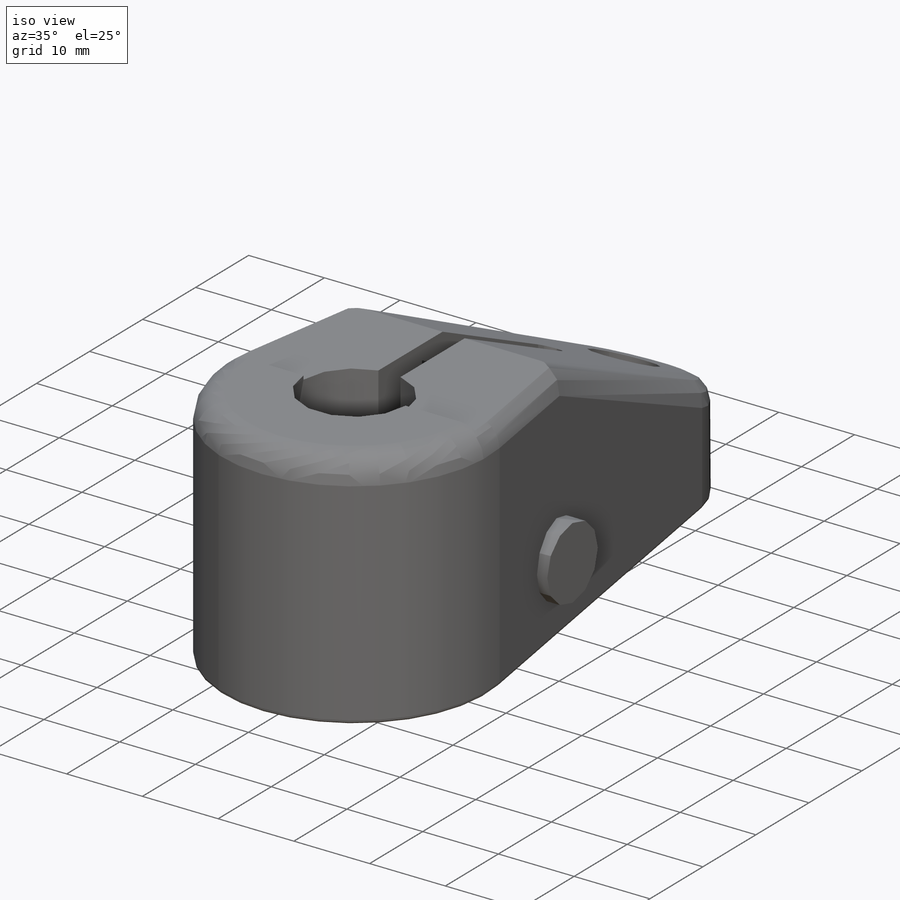
[diagram: iso view]
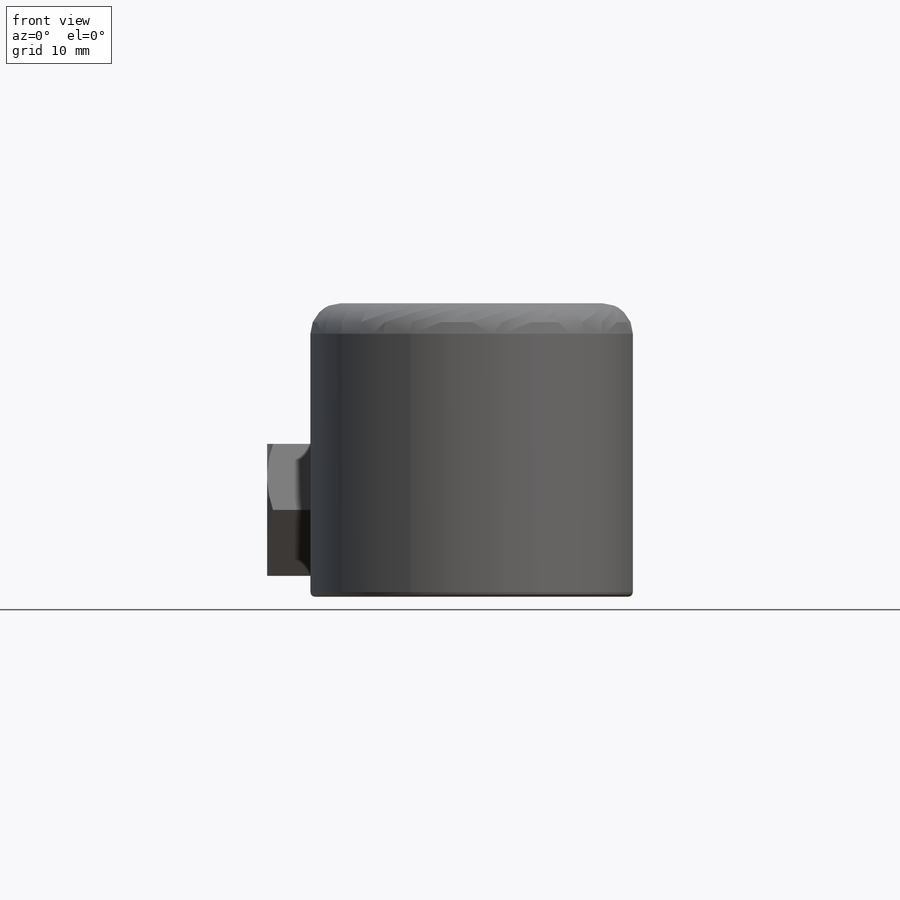
[diagram: front view]
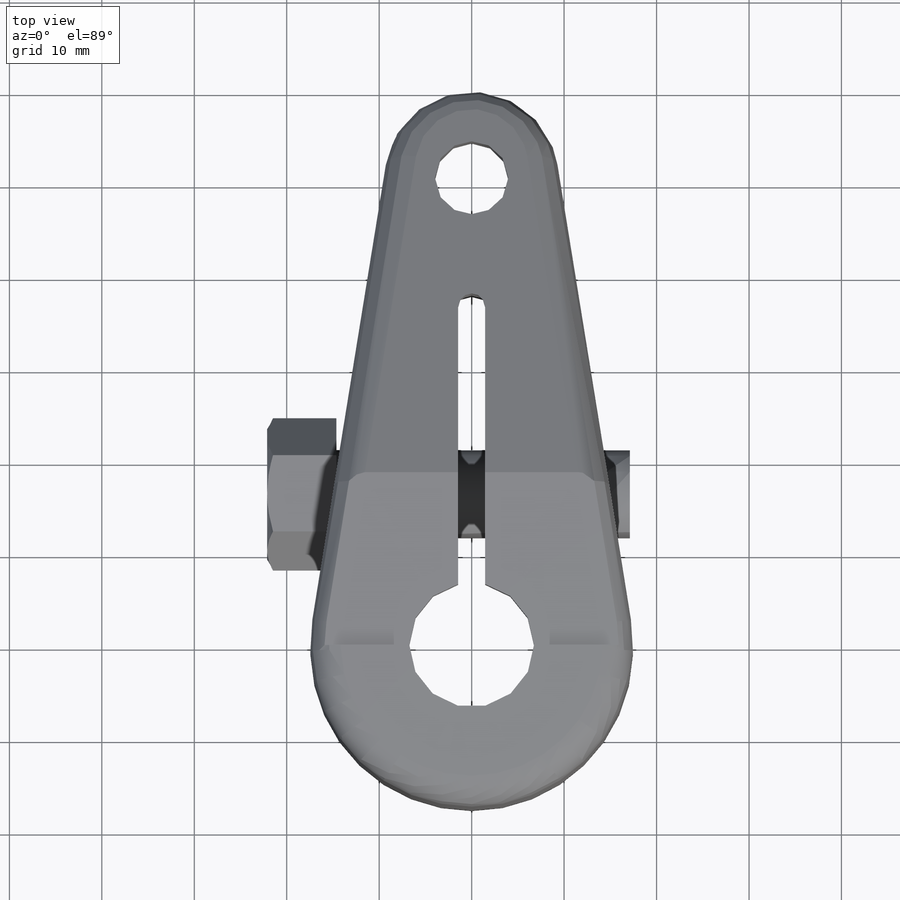
[diagram: top view]
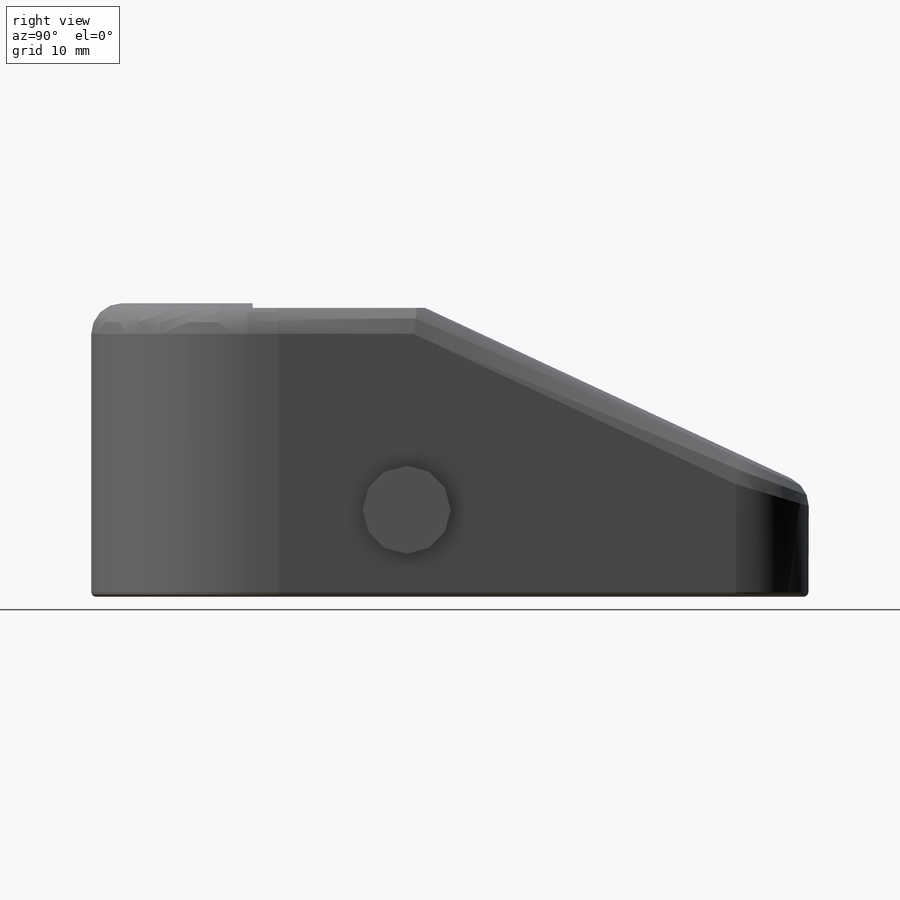
[diagram: right view]
SOLIDWORKS PART (.sldprt)
format: sldprt  version: not decoded by parser v0  size: 377,856 bytes
history: native  units: mm
features: sketch x11, cut_extrude x5, extrude x4, fillet x3, cut_revolve x2, material x1, plane x1 (+13 scaffold rows collapsed)
feature tree (40):
  scaffold x13  (default folders/planes/origin — collapsed)
  material  "Alloy Steel"
  sketch  "Sketch1"  dims[D1=22.2504mm D2=17.4498mm D3=9.398mm D4=77.6478mm]
  extrude  "Extrude1"  Depth=31.75mm
  sketch  "Sketch2"  dims[c1.D1=35.052mm c1.D2=~65.855618mm c2.D2=25.0deg]
  cut_extrude  "Cut-Extrude1"  [1 undecoded]
  sketch  "Sketch3"  dims[D1=14.5542mm D2=38.1762mm D3=8.2042mm]
  cut_extrude  "Cut-Extrude2"  Depth=3.429mm
  sketch  "Sketch11"  dims[D1=13.4874mm]
  extrude  "Extrude4"  Depth=25.4mm
  sketch  "Sketch4"  dims[D1=2.921mm]
  cut_extrude  "Cut-Extrude3"  [1 undecoded]
  plane  "Plane1"  Offset=16.6624mm
  sketch  "Sketch5"  dims[D1=9.398mm D2=9.9314mm D3=22.098mm D4=2.8194mm D5=7.9375mm D6=18.7325mm]
  cut_revolve  "Cut-Revolve1"  Angle=360deg
  sketch  "Sketch6"  dims[D1=14.2748mm]
  extrude  "Extrude2"  Depth=7.493mm
  sketch  "Sketch7"  dims[D1=9.525mm]
  extrude  "Extrude3"  Depth=31.75mm
  sketch  "Sketch8"  dims[c1.D1=~2.933573mm c2.D1=30.0deg c2.D2=3.175mm]
  cut_revolve  "Cut-Revolve2"  Angle=360deg
  sketch  "Sketch9"  dims[D1=0.508mm D2=25.4mm]
  cut_extrude  "Cut-Extrude4"  [1 undecoded]
  fillet  "Fillet1"  Radius=3.302mm
  fillet  "Fillet2"  Radius=3.302mm
  fillet  "Fillet3"  Radius=0.508mm
  sketch  "Sketch12"  dims[D1=7.9375mm D2=50.8mm]
  cut_extrude  "Cut-Extrude5"  [1 undecoded]
decode coverage: 21 of 25 modeling features carry decoded parameters
note: ~ marks probable driven/reference dimensions
note: 4 parameter values undecoded
summary: no parameter record found for 4 features
note: suppression state not decoded; provenance and decode notes live in map.json
